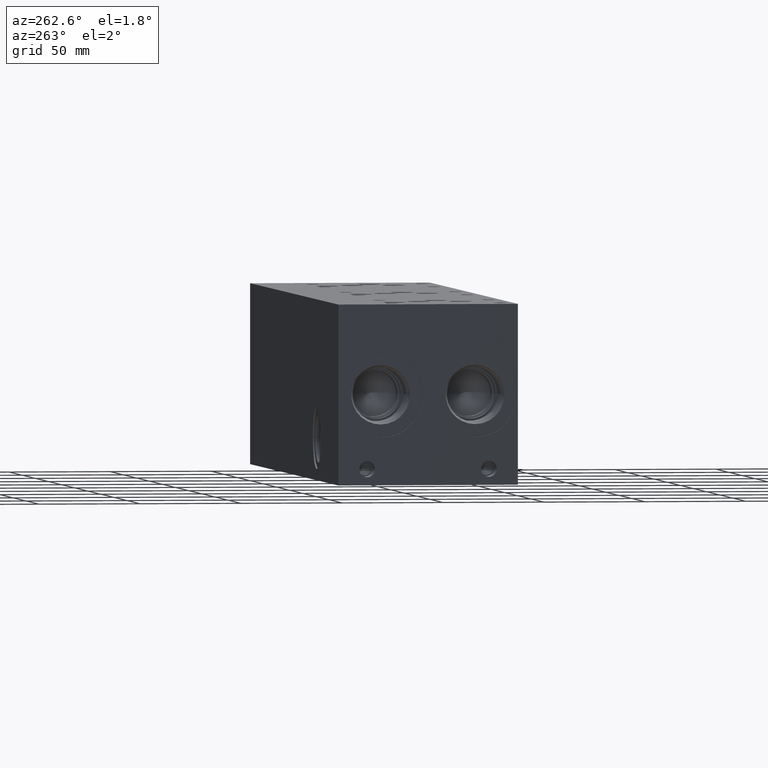
[diagram: clean part render]
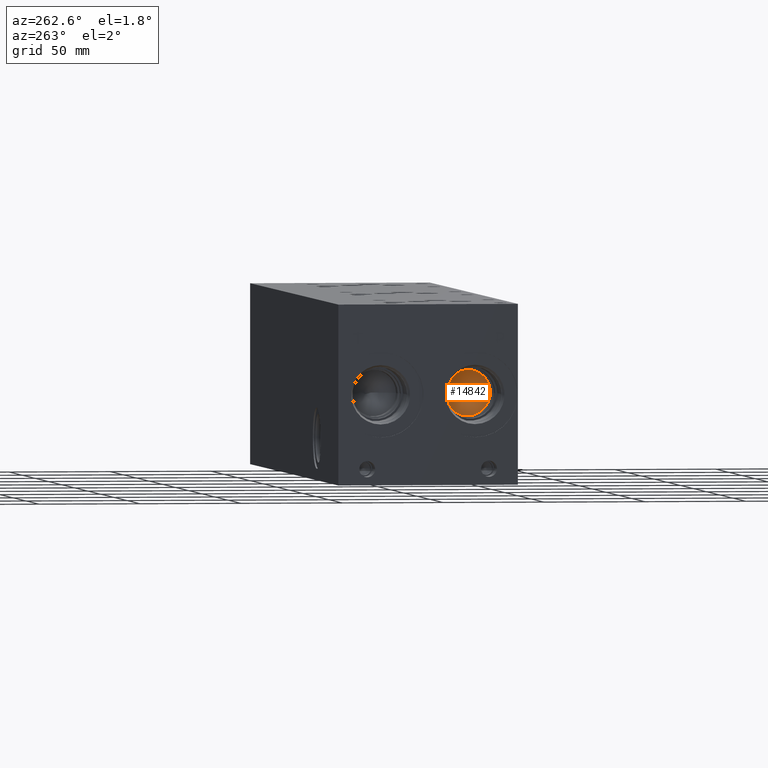
[diagram: same view with one face highlighted and labeled with its STEP entity id]
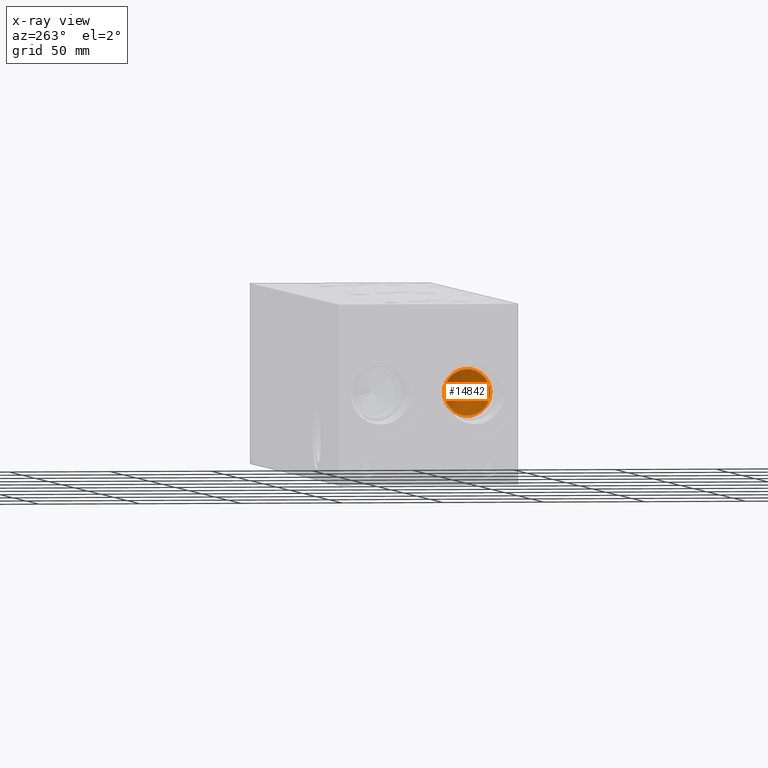
[diagram: x-ray of the same camera — body ghosted, the highlighted face saturated]
A machine part, auxiliary view. The second image highlights one B-rep face of the part: STEP entity #14842.
The next image is the same camera in x-ray: the body ghosted, the highlighted face saturated — about 0% of this face is hidden behind the body in this view.
In plain terms, the highlighted conical surface has half-angle 60 deg.
Its self-contained STEP definition (entity closure, byte-faithful):
#31=CONICAL_SURFACE('',#15549,5.7531,1.0471975511966);
#308=CIRCLE('',#15550,11.5062);
#309=CIRCLE('',#15551,11.5062);
#1915=FACE_OUTER_BOUND('',#2768,.T.);
#2768=EDGE_LOOP('',(#12400,#12401,#12402,#12403));
#4156=LINE('',#25221,#5453);
#5453=VECTOR('',#18200,5.7531);
#6721=VERTEX_POINT('',#25217);
#6722=VERTEX_POINT('',#25218);
#6723=VERTEX_POINT('',#25220);
#8701=EDGE_CURVE('',#6721,#6722,#308,.T.);
#8702=EDGE_CURVE('',#6722,#6723,#4156,.T.);
#8703=EDGE_CURVE('',#6722,#6721,#309,.T.);
#12400=ORIENTED_EDGE('',*,*,#8701,.T.);
#12401=ORIENTED_EDGE('',*,*,#8702,.T.);
#12402=ORIENTED_EDGE('',*,*,#8702,.F.);
#12403=ORIENTED_EDGE('',*,*,#8703,.T.);
#14842=ADVANCED_FACE('',(#1915),#31,.F.);
#15549=AXIS2_PLACEMENT_3D('',#25216,#18196,#18197);
#15550=AXIS2_PLACEMENT_3D('',#25219,#18198,#18199);
#15551=AXIS2_PLACEMENT_3D('',#25222,#18201,#18202);
#18196=DIRECTION('center_axis',(-1.,0.,0.));
#18197=DIRECTION('ref_axis',(0.,1.,0.));
#18198=DIRECTION('center_axis',(-1.,0.,0.));
#18199=DIRECTION('ref_axis',(0.,1.,0.));
#18200=DIRECTION('',(0.5,0.866025403784439,-1.06057523872491E-16));
#18201=DIRECTION('center_axis',(-1.,0.,0.));
#18202=DIRECTION('ref_axis',(0.,1.,0.));
#25216=CARTESIAN_POINT('Origin',(34.3095538336748,21.082,44.45));
#25217=CARTESIAN_POINT('',(30.988,32.5882,44.45));
#25218=CARTESIAN_POINT('',(30.988,9.5758,44.45));
#25219=CARTESIAN_POINT('Origin',(30.988,21.082,44.45));
#25220=CARTESIAN_POINT('',(37.6311076673497,21.082,44.45));
#25221=CARTESIAN_POINT('',(34.3095538336748,15.3289,44.45));
#25222=CARTESIAN_POINT('Origin',(30.988,21.082,44.45));